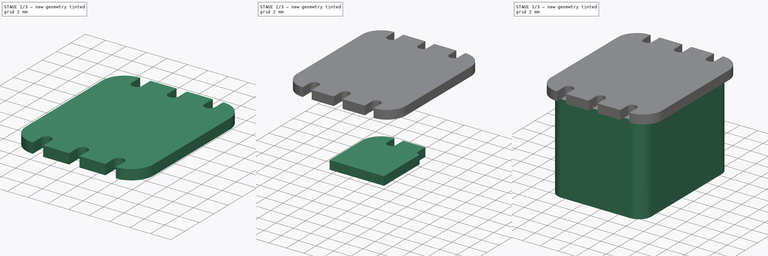
[diagram: build sequence overview — one tinted view per stage of 3, left to right]
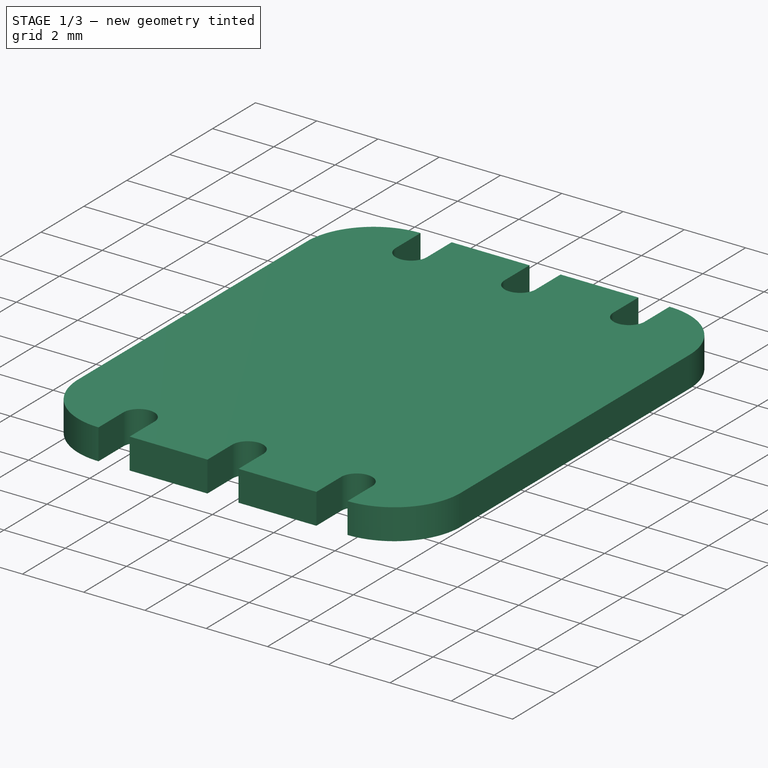
[diagram: stage 1 of 3 — iso view after this stage's code; geometry added in this stage tinted green]
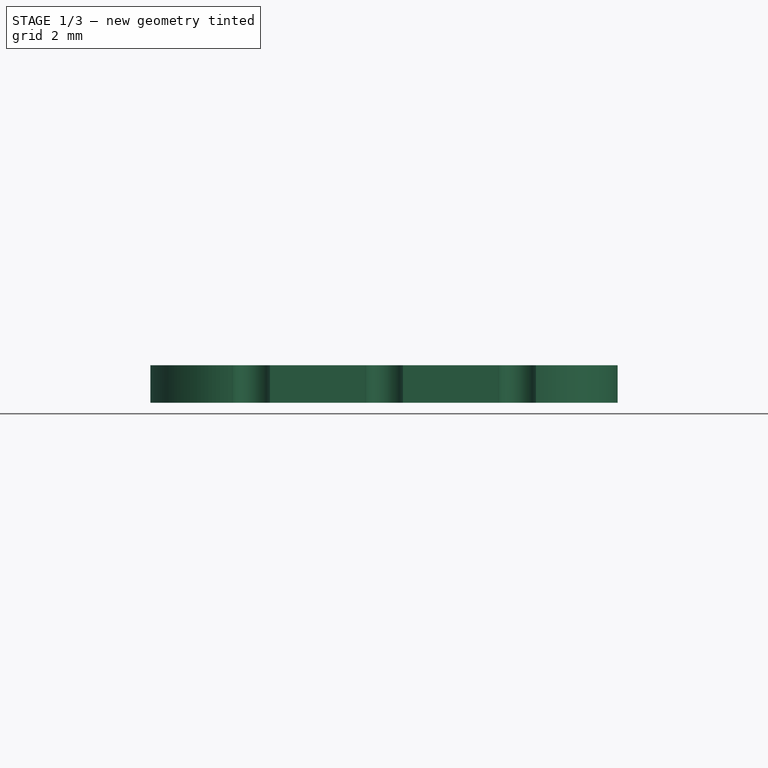
[diagram: stage 1 of 3 — front view after this stage's code; geometry added in this stage tinted green]
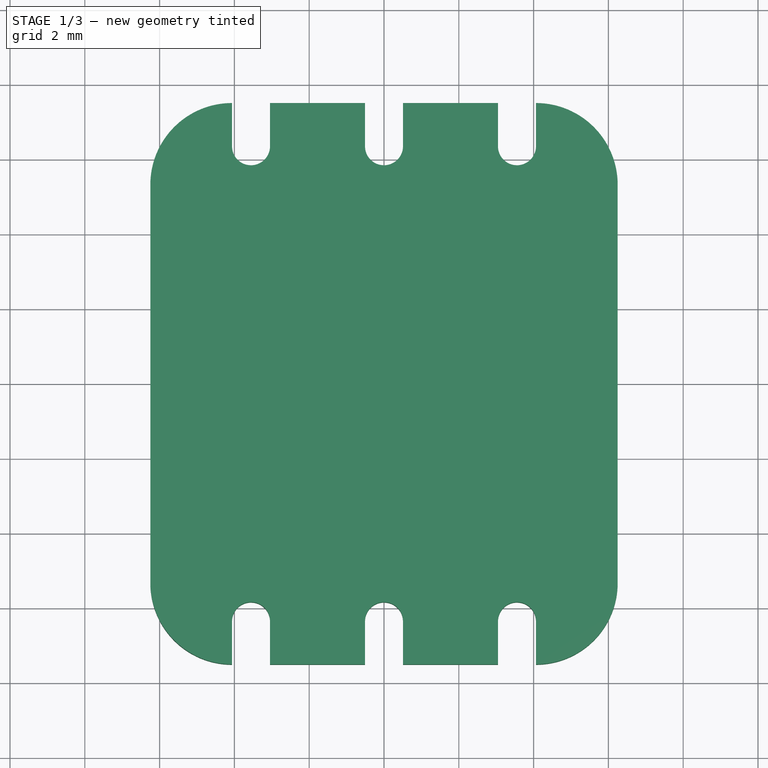
[diagram: stage 1 of 3 — top view after this stage's code; geometry added in this stage tinted green]
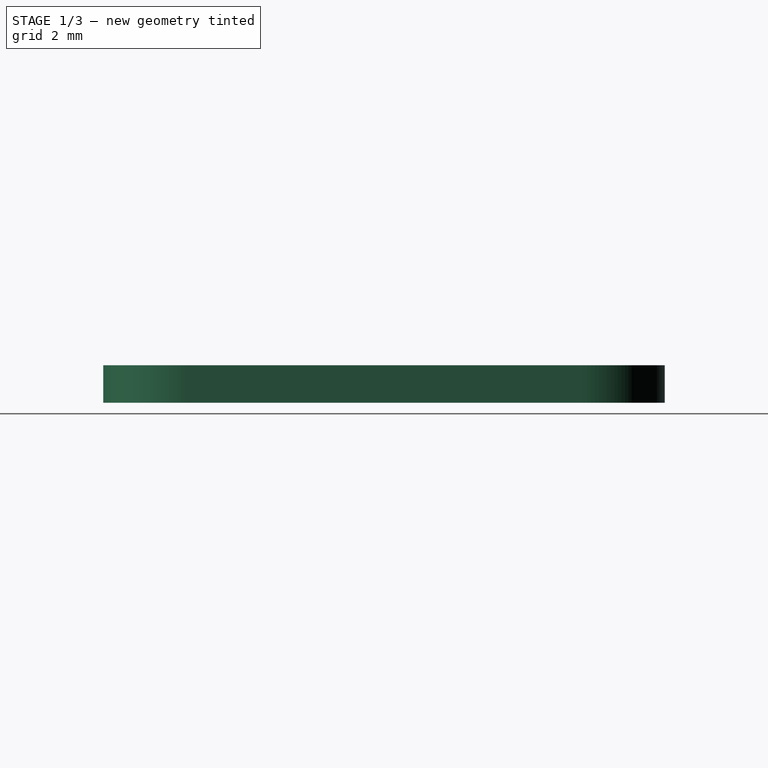
[diagram: stage 1 of 3 — right view after this stage's code; geometry added in this stage tinted green]
FCSTD DOCUMENT  (FreeCAD 0.19R16945 (Git))
Label: Xicon 42TM Series
License: All rights reserved
LicenseURL: http://en.wikipedia.org/wiki/All_rights_reserved
objects: PartDesign::Mirrored×4, Sketcher::SketchObject×3, PartDesign::Pad×3, PartDesign::Body×3, PartDesign::MultiTransform×2, PartDesign::ShapeBinder×2
note: 20 computed .brp shape members not serialized (recipe doc carries the construction recipe); baked Part::Feature solids carry a one-line shape summary decoded from their .brp

FEATURE [PartDesign::Body] Body001
  Group = -> [ShapeBinder,Sketch001,Pad001]
  Origin = -> Origin001
  Tip = -> Pad001
FEATURE [PartDesign::ShapeBinder] CopyPad001
  Placement = pos=(-1.1e-15,0,10) rot=(0,0,1;0rad)
  TraceSupport = false
FEATURE [Sketcher::SketchObject] Sketch002
  MapMode = 5
  Placement = pos=(-1.2e-15,0,11) rot=(0,0,1;0rad)
  Support = -> [CopyPad001]
  expr: Constraints[35] = Sketch.Constraints[35]
  expr: Constraints[28] = Sketch.Constraints[28]
  expr: Constraints[27] = Sketch.Constraints[27]
  expr: Constraints[29] = Sketch.Constraints[29]
  expr: Constraints[26] = Sketch.Constraints[26]
  expr: Constraints[16] = Sketch.Constraints[16]
  sketch-geometry (13):
    g0: LineSegment StartX=-6.2484 StartY=0 StartZ=0 EndX=-6.2484 EndY=5.3213 EndZ=0
    g1: ArcOfCircle CenterX=-4.064 CenterY=5.3213 CenterZ=0 NormalX=0 NormalY=0 NormalZ=1 AngleXU=0 Radius=2.1844 StartAngle=1.5708 EndAngle=3.14159
    g2: LineSegment StartX=-4.064 StartY=7.5057 StartZ=0 EndX=-4.064 EndY=6.35 EndZ=0
    g3: ArcOfCircle CenterX=-3.556 CenterY=6.35 CenterZ=0 NormalX=0 NormalY=0 NormalZ=1 AngleXU=0 Radius=0.508 StartAngle=3.14159 EndAngle=6.28319
    g4: LineSegment StartX=-3.048 StartY=6.35 StartZ=0 EndX=-3.048 EndY=7.5057 EndZ=0
    g5: LineSegment StartX=-3.048 StartY=7.5057 StartZ=0 EndX=-0.508 EndY=7.5057 EndZ=0
    g6: LineSegment StartX=-0.508 StartY=7.5057 StartZ=0 EndX=-0.508 EndY=6.35 EndZ=0
    g7: GeomPoint X=-3.556 Y=5.842 Z=0
    g8: LineSegment [constr] StartX=-4.064 StartY=6.35 StartZ=0 EndX=-3.556 EndY=6.35 EndZ=0
    g9: ArcOfCircle CenterX=-3e-16 CenterY=6.35 CenterZ=0 NormalX=0 NormalY=0 NormalZ=1 AngleXU=0 Radius=0.508 StartAngle=3.14159 EndAngle=4.71239
    g10: Circle [constr] CenterX=-3e-16 CenterY=6.35 CenterZ=0 NormalX=0 NormalY=0 NormalZ=1 AngleXU=0 Radius=0.254
    g11: LineSegment StartX=-3e-16 StartY=5.842 StartZ=0 EndX=0 EndY=0 EndZ=0
    g12: LineSegment StartX=-6.2484 StartY=0 StartZ=0 EndX=0 EndY=0 EndZ=0
  constraints (36):
    c: PointOnObject(g0,g-1)
    c: Vertical(g0)
    c: Tangent(g0,g1) = 1.5708
    c: Vertical(g2)
    c: Tangent(g2,g3) = -1.5708
    c: Coincident(g3,g4)
    c: Vertical(g4)
    c: Coincident(g4,g5)
    c: Horizontal(g5)
    c: Coincident(g5,g6)
    c: Vertical(g6)
    c: Coincident(g2,g1)
    c: PointOnObject(g1,g2)
    c: Horizontal(g4,g1)
    c: PointOnObject(g7,g3)
    c: Vertical(g7,g3)
    c: DistanceY(g0,g1) = 7.5057
    c: Horizontal(g3,g3)
    c: Coincident(g8,g2)
    c: Coincident(g8,g3)
    c: Coincident(g9,g6)
    c: PointOnObject(g9,g-2)
    c: Horizontal(g9,g7)
    c: Vertical(g9,g9)
    c: Horizontal(g9,g6)
    c: Horizontal(g6,g3)
    c: DistanceX(g7,g9) = 3.556
    c: DistanceX(g6,g9) = 0.508
    c: DistanceY(g-1,g10) = 6.35
    c: Radius(g10) = 0.254
    c: Coincident(g9,g10)
    c: Coincident(g11,g9)
    c: Coincident(g11,g-1)
    c: Coincident(g12,g0)
    c: Coincident(g12,g11)
    c: DistanceX(g12,g12) = 6.2484
FEATURE [PartDesign::Pad] Pad002
  Length = 1
  Length2 = 100
  Placement = pos=(-1.1e-15,0,10) rot=(0,0,1;0rad)
  Profile = -> Sketch002
  Type = 0
FEATURE [PartDesign::Mirrored] Mirrored002
  MirrorPlane = -> YZ_Plane002
  Placement = pos=(-1.1e-15,0,10) rot=(0,0,1;0rad)
FEATURE [PartDesign::Mirrored] Mirrored003
  MirrorPlane = -> XZ_Plane002
  Placement = pos=(-1.1e-15,0,10) rot=(0,0,1;0rad)
FEATURE [PartDesign::MultiTransform] MultiTransform001
  BaseFeature = -> Pad002
  Originals = -> [Pad002]
  Placement = pos=(-1.1e-15,0,10) rot=(0,0,1;0rad)
  Refine = true
  Transformations = -> [Mirrored002,Mirrored003]
FEATURE [PartDesign::Body] Body002
  Group = -> [CopyPad001,Sketch002,Pad002,MultiTransform001,Mirrored002,Mirrored003]
  Origin = -> Origin002
  Tip = -> MultiTransform001
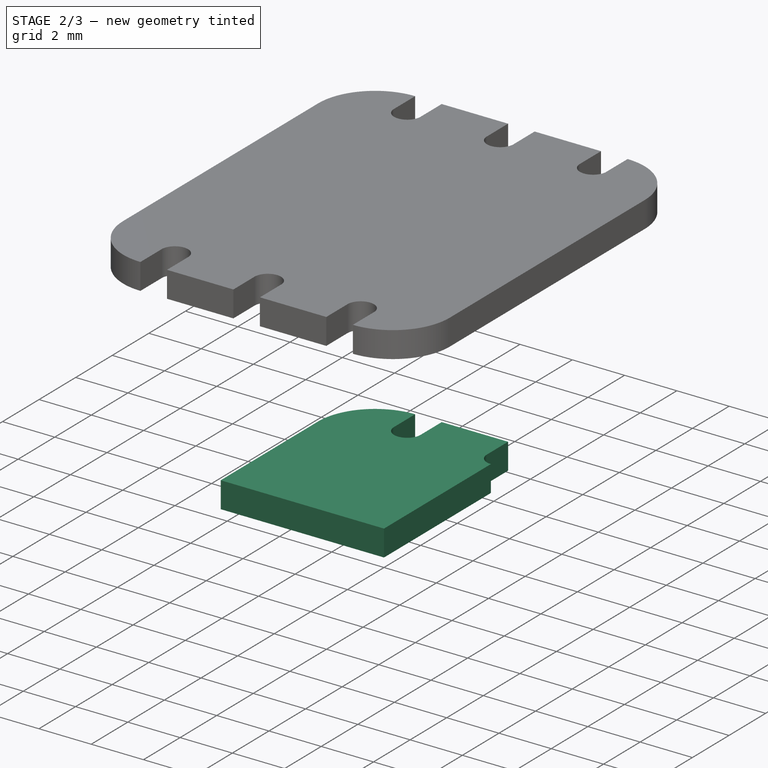
[diagram: stage 2 of 3 — iso view after this stage's code; geometry added in this stage tinted green]
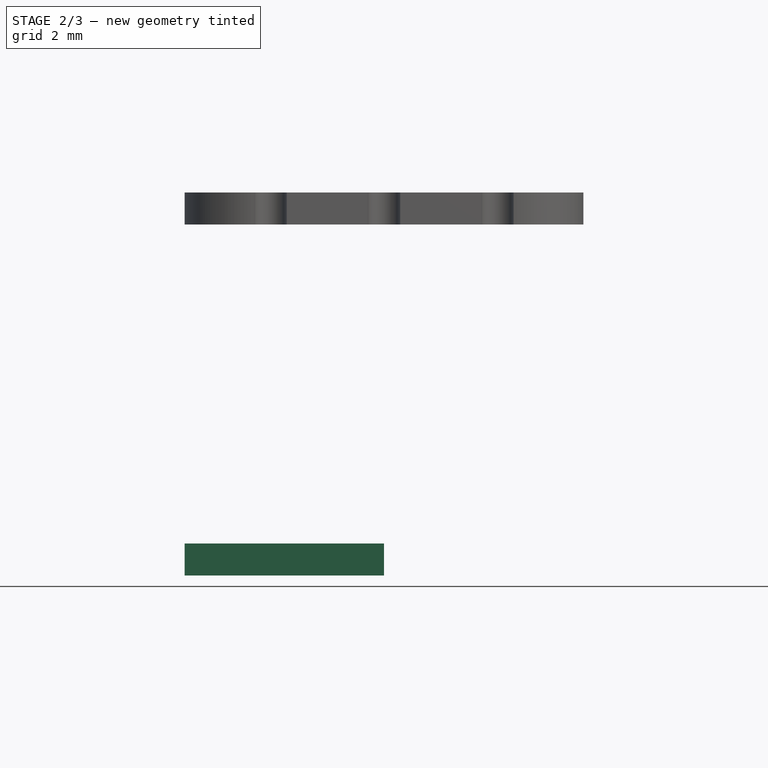
[diagram: stage 2 of 3 — front view after this stage's code; geometry added in this stage tinted green]
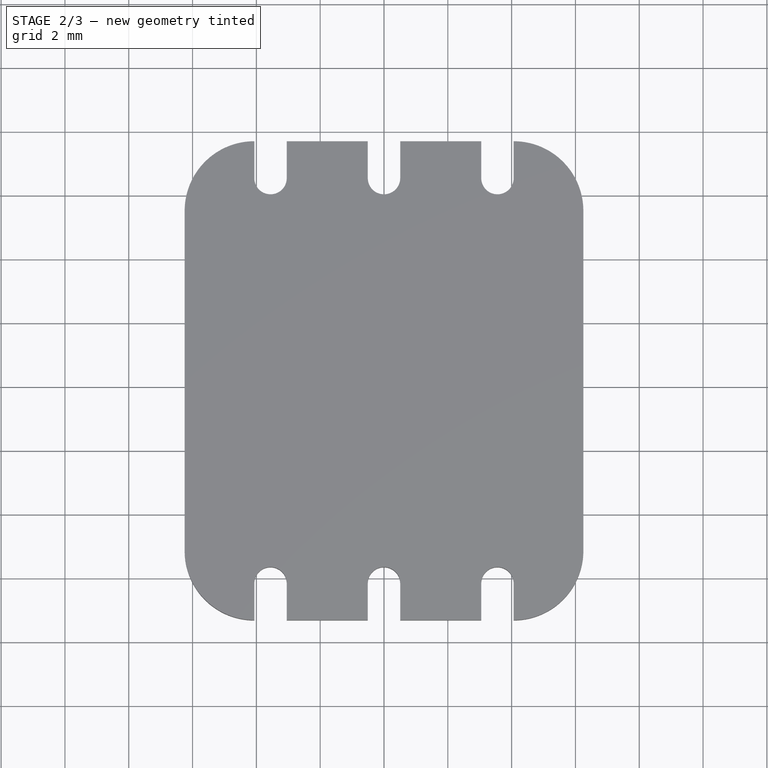
[diagram: stage 2 of 3 — top view after this stage's code; geometry added in this stage tinted green]
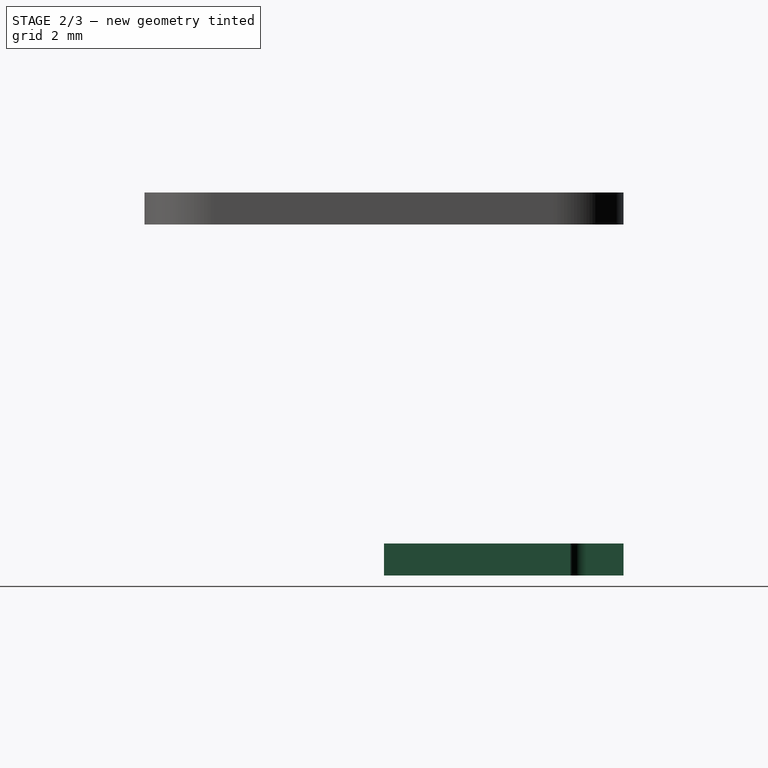
[diagram: stage 2 of 3 — right view after this stage's code; geometry added in this stage tinted green]
FEATURE [Sketcher::SketchObject] Sketch
  MapMode = 5
  Support = -> [XY_Plane]
  sketch-geometry (13):
    g0: LineSegment StartX=-6.2484 StartY=0 StartZ=0 EndX=-6.2484 EndY=5.3213 EndZ=0
    g1: ArcOfCircle CenterX=-4.064 CenterY=5.3213 CenterZ=0 NormalX=0 NormalY=0 NormalZ=1 AngleXU=0 Radius=2.1844 StartAngle=1.5708 EndAngle=3.14159
    g2: LineSegment StartX=-4.064 StartY=7.5057 StartZ=0 EndX=-4.064 EndY=6.35 EndZ=0
    g3: ArcOfCircle CenterX=-3.556 CenterY=6.35 CenterZ=0 NormalX=0 NormalY=0 NormalZ=1 AngleXU=0 Radius=0.508 StartAngle=3.14159 EndAngle=6.28319
    g4: LineSegment StartX=-3.048 StartY=6.35 StartZ=0 EndX=-3.048 EndY=7.5057 EndZ=0
    g5: LineSegment StartX=-3.048 StartY=7.5057 StartZ=0 EndX=-0.508 EndY=7.5057 EndZ=0
    g6: LineSegment StartX=-0.508 StartY=7.5057 StartZ=0 EndX=-0.508 EndY=6.35 EndZ=0
    g7: GeomPoint X=-3.556 Y=5.842 Z=0
    g8: LineSegment [constr] StartX=-4.064 StartY=6.35 StartZ=0 EndX=-3.556 EndY=6.35 EndZ=0
    g9: ArcOfCircle CenterX=-2e-16 CenterY=6.35 CenterZ=0 NormalX=0 NormalY=0 NormalZ=1 AngleXU=0 Radius=0.508 StartAngle=3.14159 EndAngle=4.71239
    g10: Circle [constr] CenterX=-2e-16 CenterY=6.35 CenterZ=0 NormalX=0 NormalY=0 NormalZ=1 AngleXU=0 Radius=0.254
    g11: LineSegment StartX=-2e-16 StartY=5.842 StartZ=0 EndX=0 EndY=0 EndZ=0
    g12: LineSegment StartX=-6.2484 StartY=0 StartZ=0 EndX=0 EndY=0 EndZ=0
  constraints (36):
    c: PointOnObject(g0,g-1)
    c: Vertical(g0)
    c: Tangent(g0,g1) = 1.5708
    c: Vertical(g2)
    c: Tangent(g2,g3) = -1.5708
    c: Coincident(g3,g4)
    c: Vertical(g4)
    c: Coincident(g4,g5)
    c: Horizontal(g5)
    c: Coincident(g5,g6)
    c: Vertical(g6)
    c: Coincident(g2,g1)
    c: PointOnObject(g1,g2)
    c: Horizontal(g4,g1)
    c: PointOnObject(g7,g3)
    c: Vertical(g7,g3)
    c: DistanceY(g0,g1) = 7.5057
    c: Horizontal(g3,g3)
    c: Coincident(g8,g2)
    c: Coincident(g8,g3)
    c: Coincident(g9,g6)
    c: PointOnObject(g9,g-2)
    c: Horizontal(g9,g7)
    c: Vertical(g9,g9)
    c: Horizontal(g9,g6)
    c: Horizontal(g6,g3)
    c: DistanceX(g7,g9) = 3.556
    c: DistanceX(g6,g9) = 0.508
    c: DistanceY(g-1,g10) = 6.35
    c: Radius(g10) = 0.254
    c: Coincident(g9,g10)
    c: Coincident(g11,g9)
    c: Coincident(g11,g-1)
    c: Coincident(g12,g0)
    c: Coincident(g12,g11)
    c: DistanceX(g12,g12) = 6.2484
FEATURE [PartDesign::Pad] Pad
  Length = 1
  Length2 = 100
  Profile = -> Sketch
  Type = 0
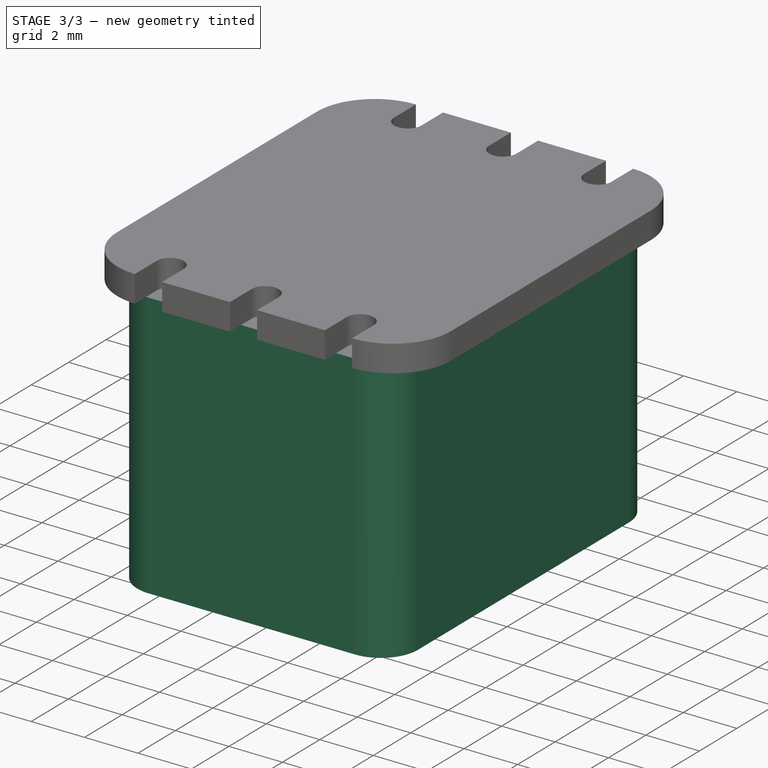
[diagram: stage 3 of 3 — iso view after this stage's code; geometry added in this stage tinted green]
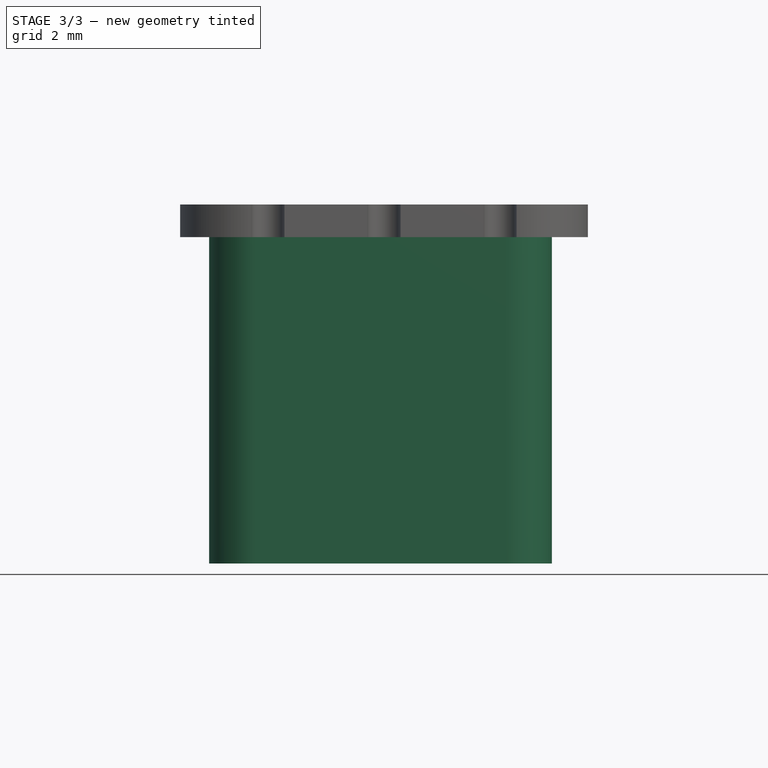
[diagram: stage 3 of 3 — front view after this stage's code; geometry added in this stage tinted green]
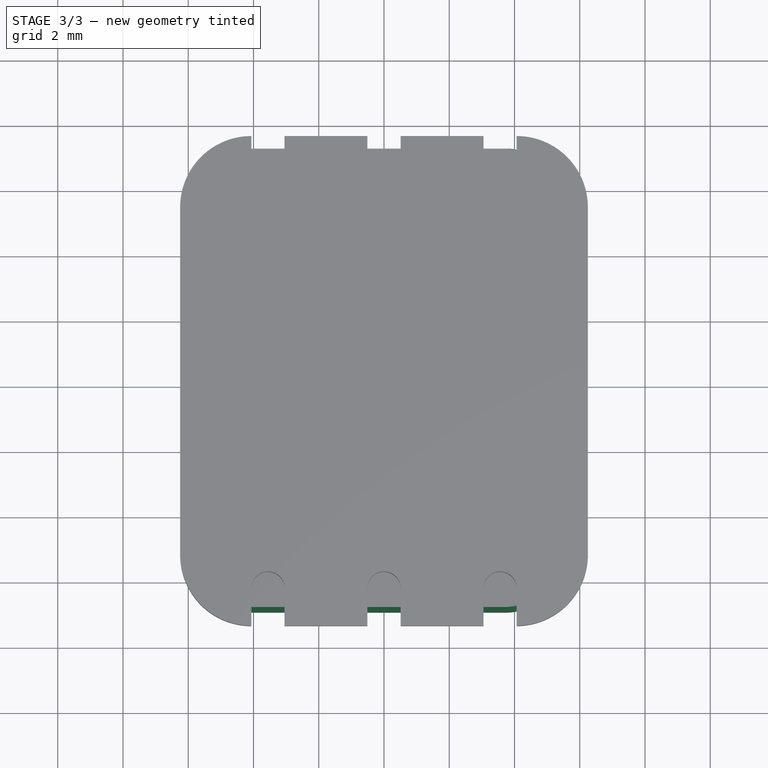
[diagram: stage 3 of 3 — top view after this stage's code; geometry added in this stage tinted green]
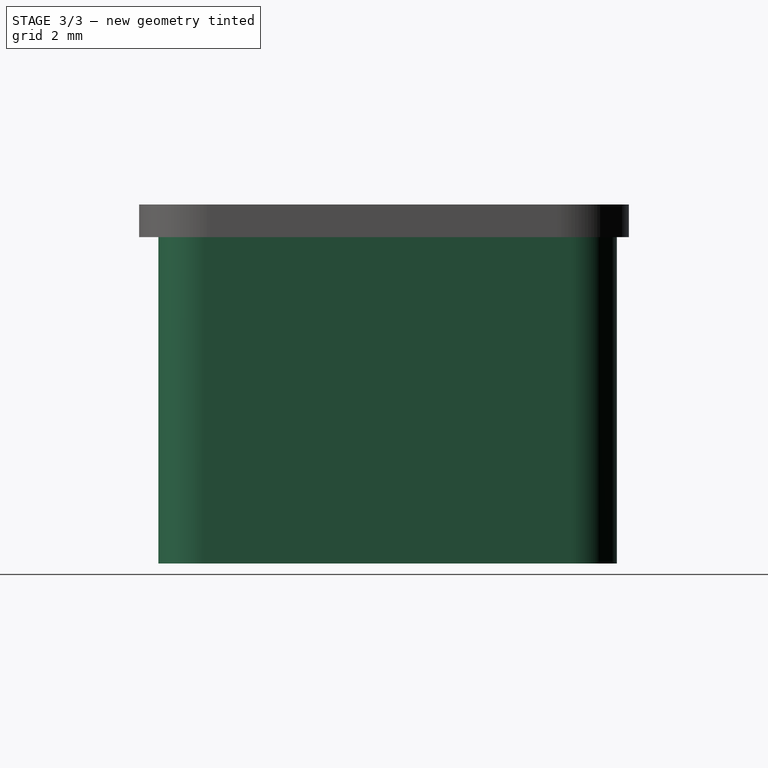
[diagram: stage 3 of 3 — right view after this stage's code; geometry added in this stage tinted green]
FEATURE [PartDesign::Mirrored] Mirrored
  MirrorPlane = -> YZ_Plane
FEATURE [PartDesign::Mirrored] Mirrored001
  MirrorPlane = -> XZ_Plane
FEATURE [PartDesign::MultiTransform] MultiTransform
  BaseFeature = -> Pad
  Originals = -> [Pad]
  Refine = true
  Transformations = -> [Mirrored,Mirrored001]
FEATURE [PartDesign::Body] Body
  Group = -> [Sketch,Pad,MultiTransform,Mirrored,Mirrored001]
  Origin = -> Origin
  Tip = -> MultiTransform
FEATURE [PartDesign::ShapeBinder] ShapeBinder
  Support = -> [MultiTransform]
  TraceSupport = false
FEATURE [Sketcher::SketchObject] Sketch001
  ExternalGeometry = -> [ShapeBinder]
  MapMode = 5
  Placement = pos=(-1e-16,0,1) rot=(0,0,1;0rad)
  Support = -> [ShapeBinder]
  sketch-geometry (16):
    g0: ArcOfCircle [constr] CenterX=-4.064 CenterY=5.3213 CenterZ=0 NormalX=0 NormalY=0 NormalZ=1 AngleXU=0 Radius=2.1844 StartAngle=1.5708 EndAngle=3.14159
    g1: ArcOfCircle [constr] CenterX=-4.064 CenterY=-5.3213 CenterZ=0 NormalX=0 NormalY=0 NormalZ=1 AngleXU=0 Radius=2.1844 StartAngle=3.14159 EndAngle=4.71239
    g2: ArcOfCircle [constr] CenterX=4.064 CenterY=-5.3213 CenterZ=0 NormalX=0 NormalY=0 NormalZ=1 AngleXU=0 Radius=2.1844 StartAngle=4.71239 EndAngle=6.28319
    g3: ArcOfCircle [constr] CenterX=4.064 CenterY=5.3213 CenterZ=0 NormalX=0 NormalY=0 NormalZ=1 AngleXU=0 Radius=2.1844 StartAngle=0 EndAngle=1.5708
    g4: LineSegment [constr] StartX=-4.064 StartY=7.5057 StartZ=0 EndX=4.064 EndY=7.5057 EndZ=0
    g5: LineSegment [constr] StartX=6.2484 StartY=5.3213 StartZ=0 EndX=6.2484 EndY=-5.3213 EndZ=0
    g6: LineSegment [constr] StartX=4.064 StartY=-7.5057 StartZ=0 EndX=-4.064 EndY=-7.5057 EndZ=0
    g7: LineSegment [constr] StartX=-6.2484 StartY=-5.3213 StartZ=0 EndX=-6.2484 EndY=5.3213 EndZ=0
    g8: LineSegment StartX=-3.97017 StartY=-6.91492 StartZ=0 EndX=3.75419 EndY=-6.91492 EndZ=0
    g9: LineSegment StartX=5.14396 StartY=-5.52514 StartZ=0 EndX=5.14396 EndY=5.74745 EndZ=0
    g10: LineSegment StartX=3.75419 StartY=7.13723 StartZ=0 EndX=-3.97017 EndY=7.13723 EndZ=0
    g11: LineSegment StartX=-5.35994 StartY=5.74745 StartZ=0 EndX=-5.35994 EndY=-5.52514 EndZ=0
    g12: ArcOfCircle CenterX=-3.97017 CenterY=5.74745 CenterZ=0 NormalX=0 NormalY=0 NormalZ=1 AngleXU=0 Radius=1.38977 StartAngle=1.5708 EndAngle=3.14159
    g13: ArcOfCircle CenterX=3.75419 CenterY=5.74745 CenterZ=0 NormalX=0 NormalY=0 NormalZ=1 AngleXU=0 Radius=1.38977 StartAngle=0 EndAngle=1.5708
    g14: ArcOfCircle CenterX=3.75419 CenterY=-5.52514 CenterZ=0 NormalX=0 NormalY=0 NormalZ=1 AngleXU=0 Radius=1.38977 StartAngle=4.71239 EndAngle=6.28319
    g15: ArcOfCircle CenterX=-3.97017 CenterY=-5.52514 CenterZ=0 NormalX=0 NormalY=0 NormalZ=1 AngleXU=0 Radius=1.38977 StartAngle=3.14159 EndAngle=4.71239
  constraints (35):
    c: Coincident(g0,g-3)
    c: Coincident(g0,g-3)
    c: Coincident(g0,g-3)
    c: Coincident(g1,g-6)
    c: Coincident(g1,g-6)
    c: Coincident(g1,g-6)
    c: Coincident(g2,g-5)
    c: Coincident(g2,g-5)
    c: Coincident(g2,g-5)
    c: Coincident(g3,g-4)
    c: Coincident(g3,g-4)
    c: Coincident(g3,g-4)
    c: Coincident(g4,g0)
    c: Coincident(g4,g3)
    c: Coincident(g5,g3)
    c: Coincident(g5,g2)
    c: Coincident(g6,g2)
    c: Coincident(g6,g1)
    c: Coincident(g7,g1)
    c: Coincident(g7,g0)
    c: Horizontal(g8)
    c: Horizontal(g10)
    c: Vertical(g9)
    c: Vertical(g11)
    c: Tangent(g10,g12) = -1.5708
    c: Tangent(g11,g12) = -1.5708
    c: Tangent(g9,g13) = -1.5708
    c: Tangent(g10,g13) = -1.5708
    c: Tangent(g8,g14) = -1.5708
    c: Tangent(g9,g14) = -1.5708
    c: Tangent(g8,g15) = -1.5708
    c: Tangent(g11,g15) = -1.5708
    c: Equal(g15,g14)
    c: Equal(g14,g13)
    c: Equal(g13,g12)
FEATURE [PartDesign::Pad] Pad001
  Length = 10
  Length2 = 100
  Profile = -> Sketch001
  Refine = true
  Type = 0
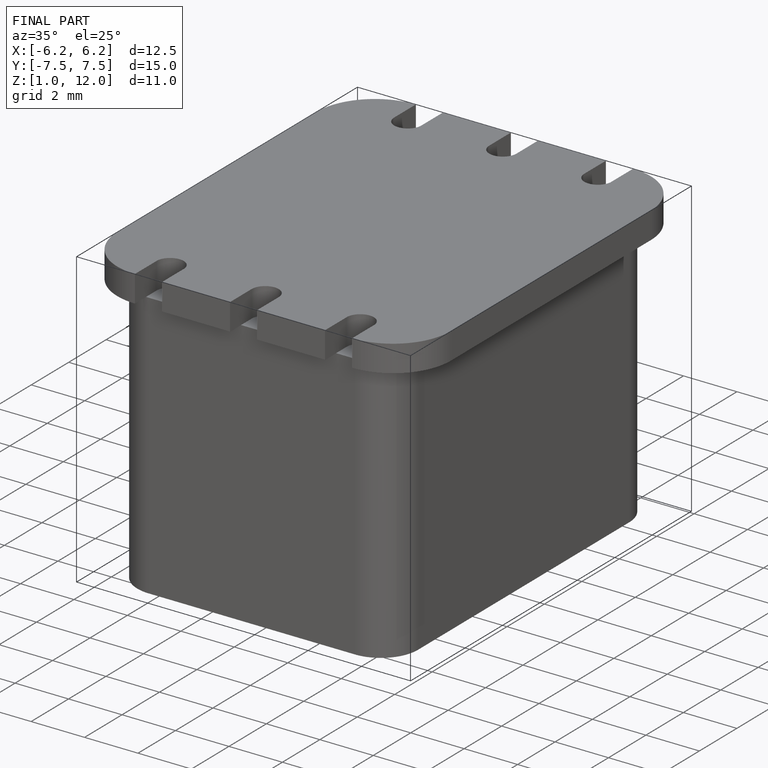
[diagram: finished part — iso view with bounding-box wireframe]
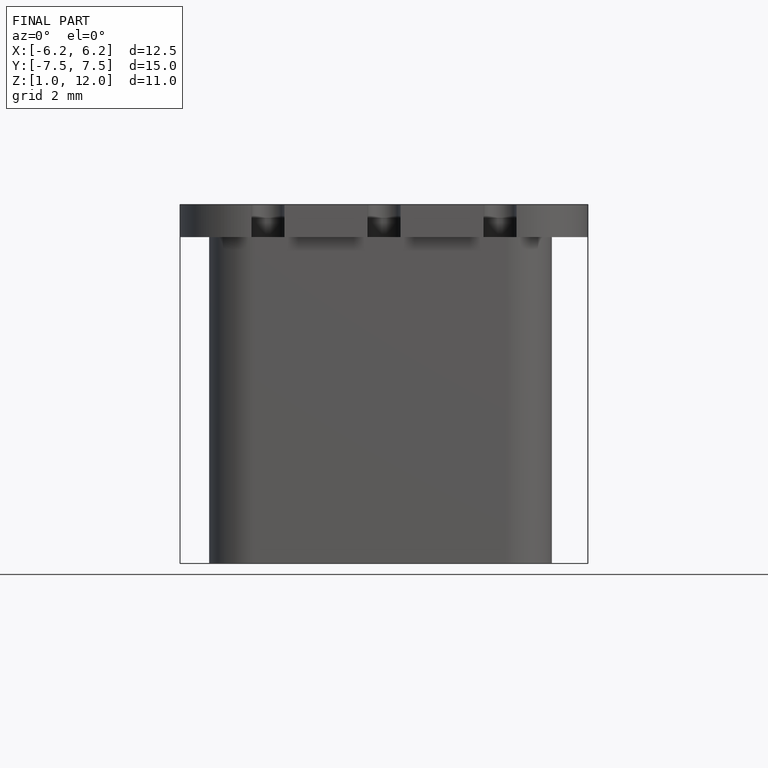
[diagram: finished part — front view with bounding-box wireframe]
